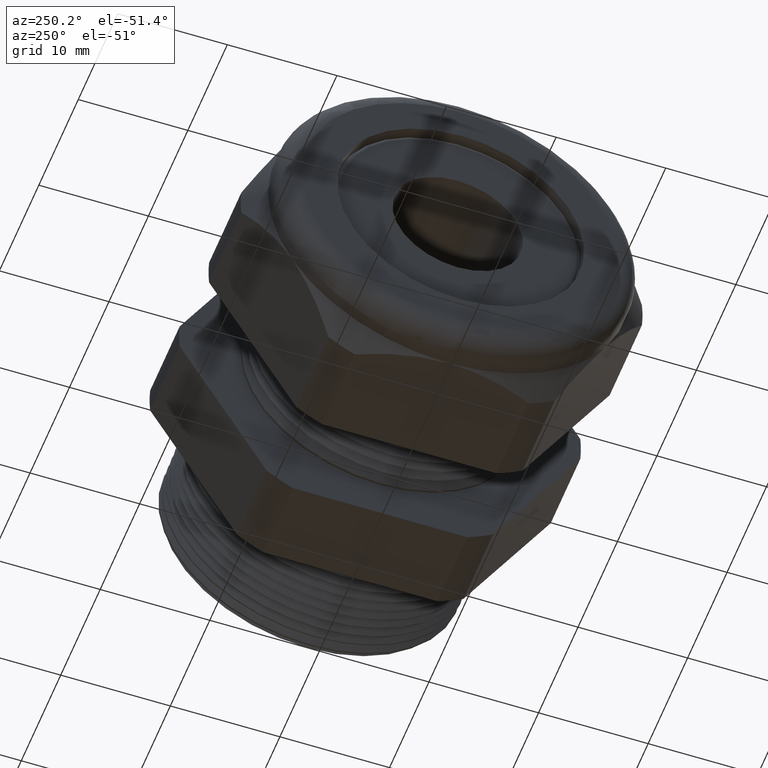
[diagram: clean part render]
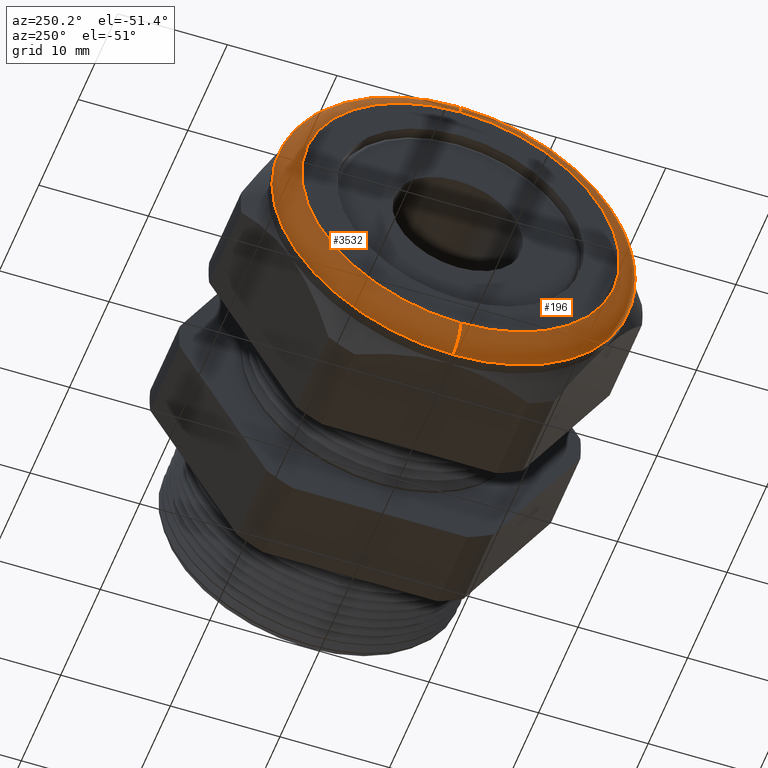
[diagram: same view with one multi-face feature highlighted, each face labeled with its STEP entity id]
A machine part, auxiliary view. The highlighted faces form ONE feature: a constant-radius fillet chain: 2 tangent blend faces with common blend radius 2 mm. The faces share edges in the B-rep.
Their STEP definitions:
[1] entity #196 (Torus):
#191 = ORIENTED_EDGE ( 'NONE', *, *, #3591, .T. ) ;
#192 = ORIENTED_EDGE ( 'NONE', *, *, #3576, .F. ) ;
#193 = ORIENTED_EDGE ( 'NONE', *, *, #3026, .F. ) ;
#194 = ORIENTED_EDGE ( 'NONE', *, *, #3033, .F. ) ;
#195 = EDGE_LOOP ( 'NONE', ( #192, #193, #191, #194 ) ) ;
#196 = ADVANCED_FACE ( 'NONE', ( #650 ), #649, .T. ) ;
#646 = DIRECTION ( 'NONE',  ( 0.0000000000000000000, 0.0000000000000000000, 1.000000000000000000 ) ) ;
#647 = DIRECTION ( 'NONE',  ( -1.000000000000000000, 0.0000000000000000000, 0.0000000000000000000 ) ) ;
#648 = AXIS2_PLACEMENT_3D ( 'NONE', #655, #647, #646 ) ;
#649 = TOROIDAL_SURFACE ( 'NONE', #648, 0.5712598425196850900, 0.07874015748031496000 ) ;
#650 = FACE_OUTER_BOUND ( 'NONE', #195, .T. ) ;
#655 = CARTESIAN_POINT ( 'NONE',  ( -1.331259842519684900, 0.0000000000000000000, 0.0000000000000000000 ) ) ;
#1187 = DIRECTION ( 'NONE',  ( 0.0000000000000000000, 0.0000000000000000000, 1.000000000000000000 ) ) ;
#1188 = DIRECTION ( 'NONE',  ( -1.000000000000000000, 0.0000000000000000000, 0.0000000000000000000 ) ) ;
#1189 = CARTESIAN_POINT ( 'NONE',  ( -1.409999999999999900, 0.0000000000000000000, 0.0000000000000000000 ) ) ;
#1190 = AXIS2_PLACEMENT_3D ( 'NONE', #1189, #1188, #1187 ) ;
#1191 = CIRCLE ( 'NONE', #1190, 0.5712598425196850900 ) ;
#1201 = DIRECTION ( 'NONE',  ( 0.0000000000000000000, 0.0000000000000000000, 1.000000000000000000 ) ) ;
#1202 = DIRECTION ( 'NONE',  ( 1.000000000000000000, 0.0000000000000000000, 0.0000000000000000000 ) ) ;
#1203 = AXIS2_PLACEMENT_3D ( 'NONE', #1209, #1202, #1201 ) ;
#1204 = CIRCLE ( 'NONE', #1203, 0.6500000000000000200 ) ;
#1209 = CARTESIAN_POINT ( 'NONE',  ( -1.331259842519684900, 0.0000000000000000000, 0.0000000000000000000 ) ) ;
#1869 = CARTESIAN_POINT ( 'NONE',  ( -1.331259842519684900, 7.960204194457796700E-017, 0.6500000000000000200 ) ) ;
#1960 = CARTESIAN_POINT ( 'NONE',  ( -1.331259842519684900, 0.0000000000000000000, -0.6500000000000000200 ) ) ;
#2004 = CARTESIAN_POINT ( 'NONE',  ( -1.409999999999999900, 0.0000000000000000000, 0.5712598425196850900 ) ) ;
#2047 = DIRECTION ( 'NONE',  ( 0.0000000000000000000, -1.224646799147353500E-016, 1.000000000000000000 ) ) ;
#2048 = DIRECTION ( 'NONE',  ( 0.0000000000000000000, 1.000000000000000000, 1.224646799147353200E-016 ) ) ;
#2049 = CARTESIAN_POINT ( 'NONE',  ( -1.331259842519684900, 6.995915376231533800E-017, -0.5712598425196850900 ) ) ;
#2050 = AXIS2_PLACEMENT_3D ( 'NONE', #2049, #2048, #2047 ) ;
#2051 = CIRCLE ( 'NONE', #2050, 0.07874015748031496000 ) ;
#2076 = CARTESIAN_POINT ( 'NONE',  ( -1.409999999999999900, 7.478059785344665900E-017, -0.5712598425196850900 ) ) ;
#2082 = DIRECTION ( 'NONE',  ( 0.0000000000000000000, 0.0000000000000000000, -1.000000000000000000 ) ) ;
#2083 = DIRECTION ( 'NONE',  ( 0.0000000000000000000, -1.000000000000000000, 0.0000000000000000000 ) ) ;
#2084 = AXIS2_PLACEMENT_3D ( 'NONE', #2090, #2083, #2082 ) ;
#2085 = CIRCLE ( 'NONE', #2084, 0.07874015748031496000 ) ;
#2090 = CARTESIAN_POINT ( 'NONE',  ( -1.331259842519684900, 0.0000000000000000000, 0.5712598425196850900 ) ) ;
#3026 = EDGE_CURVE ( 'NONE', #3461, #3531, #1204, .T. ) ;
#3033 = EDGE_CURVE ( 'NONE', #3593, #3570, #1191, .T. ) ;
#3461 = VERTEX_POINT ( 'NONE', #1869 ) ;
#3531 = VERTEX_POINT ( 'NONE', #1960 ) ;
#3570 = VERTEX_POINT ( 'NONE', #2004 ) ;
#3576 = EDGE_CURVE ( 'NONE', #3531, #3593, #2051, .T. ) ;
#3591 = EDGE_CURVE ( 'NONE', #3461, #3570, #2085, .T. ) ;
#3593 = VERTEX_POINT ( 'NONE', #2076 ) ;
[2] entity #3532 (Torus):
#1869 = CARTESIAN_POINT ( 'NONE',  ( -1.331259842519684900, 7.960204194457796700E-017, 0.6500000000000000200 ) ) ;
#1954 = DIRECTION ( 'NONE',  ( 0.0000000000000000000, 0.0000000000000000000, 1.000000000000000000 ) ) ;
#1955 = DIRECTION ( 'NONE',  ( -1.000000000000000000, 0.0000000000000000000, 0.0000000000000000000 ) ) ;
#1956 = AXIS2_PLACEMENT_3D ( 'NONE', #1958, #1955, #1954 ) ;
#1957 = TOROIDAL_SURFACE ( 'NONE', #1956, 0.5712598425196850900, 0.07874015748031496000 ) ;
#1958 = CARTESIAN_POINT ( 'NONE',  ( -1.331259842519684900, 0.0000000000000000000, 0.0000000000000000000 ) ) ;
#1959 = FACE_OUTER_BOUND ( 'NONE', #3525, .T. ) ;
#1960 = CARTESIAN_POINT ( 'NONE',  ( -1.331259842519684900, 0.0000000000000000000, -0.6500000000000000200 ) ) ;
#1990 = DIRECTION ( 'NONE',  ( 0.0000000000000000000, 0.0000000000000000000, 1.000000000000000000 ) ) ;
#1991 = DIRECTION ( 'NONE',  ( 1.000000000000000000, 0.0000000000000000000, 0.0000000000000000000 ) ) ;
#1992 = CARTESIAN_POINT ( 'NONE',  ( -1.331259842519684900, 0.0000000000000000000, 0.0000000000000000000 ) ) ;
#1993 = AXIS2_PLACEMENT_3D ( 'NONE', #1992, #1991, #1990 ) ;
#1994 = CIRCLE ( 'NONE', #1993, 0.6500000000000000200 ) ;
#2004 = CARTESIAN_POINT ( 'NONE',  ( -1.409999999999999900, 0.0000000000000000000, 0.5712598425196850900 ) ) ;
#2047 = DIRECTION ( 'NONE',  ( 0.0000000000000000000, -1.224646799147353500E-016, 1.000000000000000000 ) ) ;
#2048 = DIRECTION ( 'NONE',  ( 0.0000000000000000000, 1.000000000000000000, 1.224646799147353200E-016 ) ) ;
#2049 = CARTESIAN_POINT ( 'NONE',  ( -1.331259842519684900, 6.995915376231533800E-017, -0.5712598425196850900 ) ) ;
#2050 = AXIS2_PLACEMENT_3D ( 'NONE', #2049, #2048, #2047 ) ;
#2051 = CIRCLE ( 'NONE', #2050, 0.07874015748031496000 ) ;
#2076 = CARTESIAN_POINT ( 'NONE',  ( -1.409999999999999900, 7.478059785344665900E-017, -0.5712598425196850900 ) ) ;
#2082 = DIRECTION ( 'NONE',  ( 0.0000000000000000000, 0.0000000000000000000, -1.000000000000000000 ) ) ;
#2083 = DIRECTION ( 'NONE',  ( 0.0000000000000000000, -1.000000000000000000, 0.0000000000000000000 ) ) ;
#2084 = AXIS2_PLACEMENT_3D ( 'NONE', #2090, #2083, #2082 ) ;
#2085 = CIRCLE ( 'NONE', #2084, 0.07874015748031496000 ) ;
#2090 = CARTESIAN_POINT ( 'NONE',  ( -1.331259842519684900, 0.0000000000000000000, 0.5712598425196850900 ) ) ;
#2093 = DIRECTION ( 'NONE',  ( 0.0000000000000000000, 0.0000000000000000000, 1.000000000000000000 ) ) ;
#2094 = DIRECTION ( 'NONE',  ( -1.000000000000000000, 0.0000000000000000000, 0.0000000000000000000 ) ) ;
#2095 = CARTESIAN_POINT ( 'NONE',  ( -1.409999999999999900, 0.0000000000000000000, 0.0000000000000000000 ) ) ;
#2096 = AXIS2_PLACEMENT_3D ( 'NONE', #2095, #2094, #2093 ) ;
#2097 = CIRCLE ( 'NONE', #2096, 0.5712598425196850900 ) ;
#3461 = VERTEX_POINT ( 'NONE', #1869 ) ;
#3525 = EDGE_LOOP ( 'NONE', ( #3560, #3578, #3585, #3599 ) ) ;
#3531 = VERTEX_POINT ( 'NONE', #1960 ) ;
#3532 = ADVANCED_FACE ( 'NONE', ( #1959 ), #1957, .T. ) ;
#3542 = EDGE_CURVE ( 'NONE', #3531, #3461, #1994, .T. ) ;
#3560 = ORIENTED_EDGE ( 'NONE', *, *, #3542, .F. ) ;
#3570 = VERTEX_POINT ( 'NONE', #2004 ) ;
#3576 = EDGE_CURVE ( 'NONE', #3531, #3593, #2051, .T. ) ;
#3578 = ORIENTED_EDGE ( 'NONE', *, *, #3576, .T. ) ;
#3585 = ORIENTED_EDGE ( 'NONE', *, *, #3588, .F. ) ;
#3588 = EDGE_CURVE ( 'NONE', #3570, #3593, #2097, .T. ) ;
#3591 = EDGE_CURVE ( 'NONE', #3461, #3570, #2085, .T. ) ;
#3593 = VERTEX_POINT ( 'NONE', #2076 ) ;
#3599 = ORIENTED_EDGE ( 'NONE', *, *, #3591, .F. ) ;